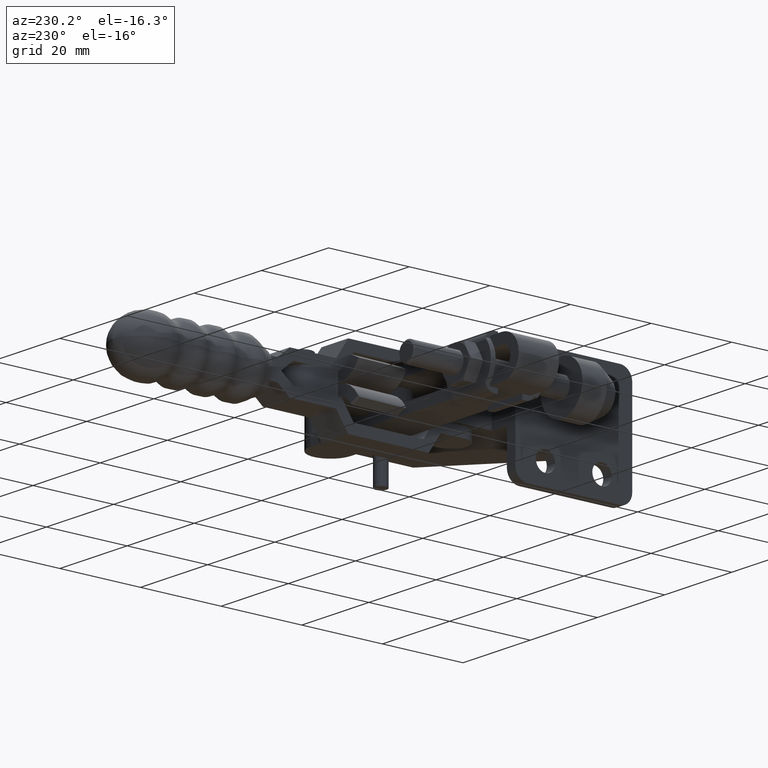
[diagram: clean part render]
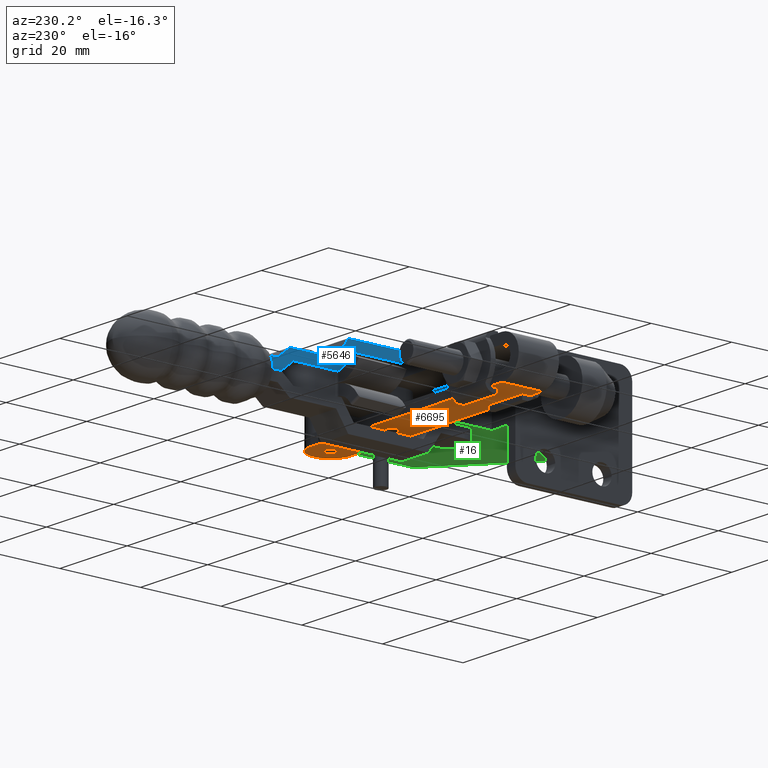
[diagram: same view with three faces highlighted in distinct colors, each labeled with its STEP entity id]
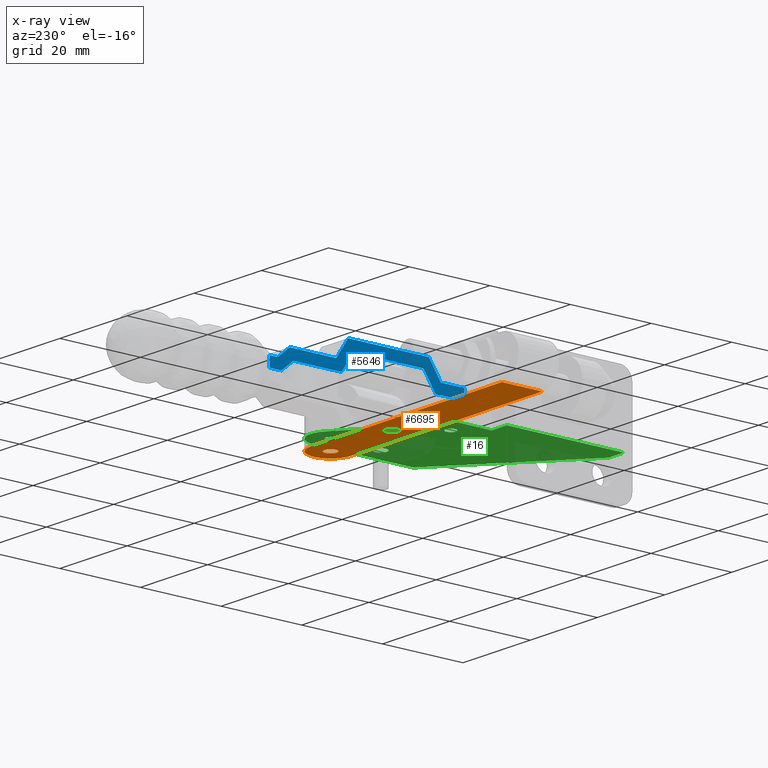
[diagram: x-ray of the same camera — body ghosted, the three highlighted faces saturated]
A machine part, auxiliary view with three faces highlighted in distinct colors.
The next image is the same camera in x-ray (body ghosted, the three faces saturated) — at least one of them is partly hidden behind the body in this view.
Their STEP definitions:

[orange] entity #6695 — the highlighted planar face has unit normal (-0, -0, 1).
#117 = ORIENTED_EDGE ( 'NONE', *, *, #7894, .T. ) ;
#579 = CARTESIAN_POINT ( 'NONE',  ( -4.999999999999765500, 27.00000000000003600, -4.999999999999991100 ) ) ;
#684 = AXIS2_PLACEMENT_3D ( 'NONE', #3376, #6653, #1699 ) ;
#1357 = DIRECTION ( 'NONE',  ( -1.000000000000000000, 0.0000000000000000000, -1.137523590804463300E-015 ) ) ;
#1418 = CIRCLE ( 'NONE', #6727, 4.999999999999997300 ) ;
#1476 = DIRECTION ( 'NONE',  ( 1.243495625872095400E-015, 9.951337725666447200E-016, -1.000000000000000000 ) ) ;
#1498 = FACE_OUTER_BOUND ( 'NONE', #2494, .T. ) ;
#1699 = DIRECTION ( 'NONE',  ( 1.000000000000000000, 0.0000000000000000000, 1.137523590804464700E-015 ) ) ;
#1741 = CARTESIAN_POINT ( 'NONE',  ( -4.999999999999986700, 26.99999999999999600, -4.999999999999923600 ) ) ;
#1756 = FACE_BOUND ( 'NONE', #2643, .T. ) ;
#1788 = VERTEX_POINT ( 'NONE', #6216 ) ;
#1830 = CARTESIAN_POINT ( 'NONE',  ( -62.00000000000000000, 21.99999999999999300, -4.999999999999999100 ) ) ;
#1834 = ORIENTED_EDGE ( 'NONE', *, *, #9188, .T. ) ;
#1890 = VECTOR ( 'NONE', #7376, 1000.000000000000000 ) ;
#1899 = VERTEX_POINT ( 'NONE', #7697 ) ;
#1908 = EDGE_CURVE ( 'NONE', #9593, #8525, #9566, .T. ) ;
#2168 = EDGE_CURVE ( 'NONE', #7654, #1788, #4200, .T. ) ;
#2418 = VECTOR ( 'NONE', #10162, 1000.000000000000000 ) ;
#2494 = EDGE_LOOP ( 'NONE', ( #7686, #7336, #9640, #1834 ) ) ;
#2546 = DIRECTION ( 'NONE',  ( 0.0000000000000000000, 1.000000000000000000, 1.040834085586084800E-015 ) ) ;
#2616 = VERTEX_POINT ( 'NONE', #9812 ) ;
#2643 = EDGE_LOOP ( 'NONE', ( #3778, #6854 ) ) ;
#2862 = DIRECTION ( 'NONE',  ( -1.318559502757754500E-015, -8.971511682777973100E-016, 1.000000000000000000 ) ) ;
#2883 = CIRCLE ( 'NONE', #7663, 1.524999999999998600 ) ;
#3376 = CARTESIAN_POINT ( 'NONE',  ( -23.25112744560024700, 27.00218945427035100, -4.999999999999946700 ) ) ;
#3436 = CARTESIAN_POINT ( 'NONE',  ( -62.00000000000000000, 21.99999999999999300, -4.999999999999999100 ) ) ;
#3549 = AXIS2_PLACEMENT_3D ( 'NONE', #7650, #2862, #8480 ) ;
#3778 = ORIENTED_EDGE ( 'NONE', *, *, #2168, .F. ) ;
#3805 = CARTESIAN_POINT ( 'NONE',  ( -4.999999999999986700, 31.99999999999999300, -4.999999999999918300 ) ) ;
#4200 = CIRCLE ( 'NONE', #684, 1.524999999999998600 ) ;
#4612 = AXIS2_PLACEMENT_3D ( 'NONE', #3436, #9825, #5043 ) ;
#4946 = CARTESIAN_POINT ( 'NONE',  ( -21.72612744560024800, 27.00218945427035100, -4.999999999999944900 ) ) ;
#4951 = ORIENTED_EDGE ( 'NONE', *, *, #7483, .T. ) ;
#5043 = DIRECTION ( 'NONE',  ( 0.0000000000000000000, -1.000000000000000000, -9.951337725666447200E-016 ) ) ;
#5067 = CIRCLE ( 'NONE', #6293, 1.525000000000000400 ) ;
#5326 = CARTESIAN_POINT ( 'NONE',  ( -62.00000000000000000, 31.99999999999999300, -4.999999999999989300 ) ) ;
#5467 = EDGE_CURVE ( 'NONE', #5854, #8525, #1418, .T. ) ;
#5643 = VERTEX_POINT ( 'NONE', #8333 ) ;
#5724 = FACE_BOUND ( 'NONE', #7446, .T. ) ;
#5854 = VERTEX_POINT ( 'NONE', #3805 ) ;
#6106 = DIRECTION ( 'NONE',  ( -1.318559502757754500E-015, -8.971511682777973100E-016, 1.000000000000000000 ) ) ;
#6216 = CARTESIAN_POINT ( 'NONE',  ( -24.77612744560024500, 27.00218945427035100, -4.999999999999948500 ) ) ;
#6239 = CARTESIAN_POINT ( 'NONE',  ( -23.25112744560024700, 27.00218945427035100, -4.999999999999946700 ) ) ;
#6293 = AXIS2_PLACEMENT_3D ( 'NONE', #579, #6106, #1357 ) ;
#6553 = CIRCLE ( 'NONE', #3549, 1.525000000000000400 ) ;
#6653 = DIRECTION ( 'NONE',  ( 1.243495625872095400E-015, 9.951337725666447200E-016, -1.000000000000000000 ) ) ;
#6695 = ADVANCED_FACE ( 'NONE', ( #5724, #1756, #1498 ), #8195, .F. ) ;
#6727 = AXIS2_PLACEMENT_3D ( 'NONE', #1741, #7287, #2546 ) ;
#6854 = ORIENTED_EDGE ( 'NONE', *, *, #9897, .F. ) ;
#6927 = CARTESIAN_POINT ( 'NONE',  ( -4.999999999999986700, 22.00000000000000700, -4.999999999999928100 ) ) ;
#7045 = DIRECTION ( 'NONE',  ( 1.000000000000000000, 0.0000000000000000000, 1.137523590804464700E-015 ) ) ;
#7287 = DIRECTION ( 'NONE',  ( 1.243495625872095400E-015, 9.951337725666447200E-016, -1.000000000000000000 ) ) ;
#7336 = ORIENTED_EDGE ( 'NONE', *, *, #1908, .F. ) ;
#7376 = DIRECTION ( 'NONE',  ( 0.0000000000000000000, 1.000000000000000000, 9.951337725666447200E-016 ) ) ;
#7440 = VECTOR ( 'NONE', #7992, 1000.000000000000000 ) ;
#7446 = EDGE_LOOP ( 'NONE', ( #117, #4951 ) ) ;
#7483 = EDGE_CURVE ( 'NONE', #2616, #5643, #5067, .T. ) ;
#7650 = CARTESIAN_POINT ( 'NONE',  ( -4.999999999999765500, 27.00000000000003600, -4.999999999999991100 ) ) ;
#7654 = VERTEX_POINT ( 'NONE', #4946 ) ;
#7663 = AXIS2_PLACEMENT_3D ( 'NONE', #6239, #1476, #7045 ) ;
#7686 = ORIENTED_EDGE ( 'NONE', *, *, #5467, .T. ) ;
#7697 = CARTESIAN_POINT ( 'NONE',  ( -62.00000000000000000, 31.99999999999999300, -4.999999999999989300 ) ) ;
#7730 = CARTESIAN_POINT ( 'NONE',  ( -62.00000000000000000, 21.99999999999999300, -4.999999999999999100 ) ) ;
#7894 = EDGE_CURVE ( 'NONE', #5643, #2616, #6553, .T. ) ;
#7992 = DIRECTION ( 'NONE',  ( 1.000000000000000000, 0.0000000000000000000, 1.243495625872095400E-015 ) ) ;
#8195 = PLANE ( 'NONE',  #4612 ) ;
#8252 = LINE ( 'NONE', #1830, #1890 ) ;
#8333 = CARTESIAN_POINT ( 'NONE',  ( -6.524999999999765900, 27.00000000000003600, -4.999999999999992900 ) ) ;
#8480 = DIRECTION ( 'NONE',  ( -1.000000000000000000, 0.0000000000000000000, -1.137523590804463300E-015 ) ) ;
#8525 = VERTEX_POINT ( 'NONE', #6927 ) ;
#8798 = LINE ( 'NONE', #5326, #2418 ) ;
#8996 = CARTESIAN_POINT ( 'NONE',  ( -62.00000000000000000, 21.99999999999999300, -4.999999999999999100 ) ) ;
#9188 = EDGE_CURVE ( 'NONE', #1899, #5854, #8798, .T. ) ;
#9566 = LINE ( 'NONE', #7730, #7440 ) ;
#9593 = VERTEX_POINT ( 'NONE', #8996 ) ;
#9640 = ORIENTED_EDGE ( 'NONE', *, *, #10109, .T. ) ;
#9812 = CARTESIAN_POINT ( 'NONE',  ( -3.474999999999765600, 27.00000000000003600, -4.999999999999989300 ) ) ;
#9825 = DIRECTION ( 'NONE',  ( -1.243495625872095400E-015, -9.951337725666447200E-016, 1.000000000000000000 ) ) ;
#9897 = EDGE_CURVE ( 'NONE', #1788, #7654, #2883, .T. ) ;
#10109 = EDGE_CURVE ( 'NONE', #9593, #1899, #8252, .T. ) ;
#10162 = DIRECTION ( 'NONE',  ( 1.000000000000000000, 0.0000000000000000000, 1.243495625872095400E-015 ) ) ;

[blue] entity #5646 — the highlighted planar face has unit normal (1, 0, 0).
#156 = ORIENTED_EDGE ( 'NONE', *, *, #4162, .F. ) ;
#197 = VECTOR ( 'NONE', #4480, 1000.000000000000000 ) ;
#369 = DIRECTION ( 'NONE',  ( 7.989152415359960500E-031, 1.000000000000000000, -2.383379207340311900E-015 ) ) ;
#409 = CARTESIAN_POINT ( 'NONE',  ( -27.99999999999994300, 34.12440246899903000, 23.47966460916793700 ) ) ;
#458 = CARTESIAN_POINT ( 'NONE',  ( -27.99999999999990100, 59.29999999999964900, 2.499999999999917400 ) ) ;
#565 = CARTESIAN_POINT ( 'NONE',  ( -27.99999999999992200, 21.79999999999994400, 9.499999999999976900 ) ) ;
#720 = VERTEX_POINT ( 'NONE', #1280 ) ;
#781 = EDGE_CURVE ( 'NONE', #4903, #5159, #3560, .T. ) ;
#811 = LINE ( 'NONE', #8936, #9037 ) ;
#885 = VECTOR ( 'NONE', #1307, 1000.000000000000100 ) ;
#1044 = EDGE_CURVE ( 'NONE', #5359, #10115, #1768, .T. ) ;
#1050 = DIRECTION ( 'NONE',  ( -1.026404106011485300E-015, -0.7682212795973634200, 0.6401843996644948100 ) ) ;
#1051 = LINE ( 'NONE', #4191, #7128 ) ;
#1079 = CARTESIAN_POINT ( 'NONE',  ( -27.99999999999995000, 61.29999999999968500, 23.47966460916790500 ) ) ;
#1118 = CARTESIAN_POINT ( 'NONE',  ( -27.99999999999991500, 56.29999999999974800, 4.999999999999926300 ) ) ;
#1119 = LINE ( 'NONE', #4621, #5317 ) ;
#1193 = DIRECTION ( 'NONE',  ( 6.139581518573648900E-031, 1.000000000000000000, -1.526760972485686100E-015 ) ) ;
#1221 = DIRECTION ( 'NONE',  ( 1.373142243848756200E-015, -0.5547001962252449100, -0.8320502943378331700 ) ) ;
#1269 = VERTEX_POINT ( 'NONE', #458 ) ;
#1280 = CARTESIAN_POINT ( 'NONE',  ( -27.99999999999990400, 13.00000000000002500, 4.999999999999988500 ) ) ;
#1307 = DIRECTION ( 'NONE',  ( 1.026404106011485700E-015, 0.7682212795973617500, -0.6401843996644966900 ) ) ;
#1441 = CARTESIAN_POINT ( 'NONE',  ( -27.99999999999989700, 23.13795939621993000, 6.999999999999960900 ) ) ;
#1553 = CARTESIAN_POINT ( 'NONE',  ( -27.99999999999991800, 44.79999999999989100, 4.999999999999940500 ) ) ;
#1599 = EDGE_CURVE ( 'NONE', #1611, #7728, #1119, .T. ) ;
#1611 = VERTEX_POINT ( 'NONE', #4656 ) ;
#1768 = LINE ( 'NONE', #8847, #9730 ) ;
#1921 = LINE ( 'NONE', #3214, #8015 ) ;
#2158 = LINE ( 'NONE', #2588, #4261 ) ;
#2272 = LINE ( 'NONE', #10077, #197 ) ;
#2588 = CARTESIAN_POINT ( 'NONE',  ( -27.99999999999991800, 8.999999999999827700, 4.999999999999994700 ) ) ;
#2610 = CARTESIAN_POINT ( 'NONE',  ( -27.99999999999989700, 23.13795939621993000, 6.999999999999960900 ) ) ;
#2654 = CARTESIAN_POINT ( 'NONE',  ( -27.99999999999991800, 61.29999999999967000, 2.499999999999916100 ) ) ;
#2734 = PLANE ( 'NONE',  #6531 ) ;
#3022 = EDGE_CURVE ( 'NONE', #10115, #4877, #4295, .T. ) ;
#3134 = FACE_OUTER_BOUND ( 'NONE', #10053, .T. ) ;
#3180 = ORIENTED_EDGE ( 'NONE', *, *, #3935, .F. ) ;
#3214 = CARTESIAN_POINT ( 'NONE',  ( -27.99999999999990800, 43.46204060377995400, 2.499999999999926700 ) ) ;
#3245 = DIRECTION ( 'NONE',  ( -6.139581518573649800E-031, -1.000000000000000000, 1.526760972485686300E-015 ) ) ;
#3322 = DIRECTION ( 'NONE',  ( -6.139581518573649800E-031, -1.000000000000000000, 1.526760972485686300E-015 ) ) ;
#3401 = VERTEX_POINT ( 'NONE', #4308 ) ;
#3410 = CARTESIAN_POINT ( 'NONE',  ( -27.99999999999990100, 52.38700974812658700, 4.999999991984329600E-005 ) ) ;
#3445 = EDGE_CURVE ( 'NONE', #7122, #4993, #7025, .T. ) ;
#3504 = ORIENTED_EDGE ( 'NONE', *, *, #1599, .F. ) ;
#3560 = LINE ( 'NONE', #3410, #4516 ) ;
#3811 = EDGE_CURVE ( 'NONE', #4444, #1269, #7012, .T. ) ;
#3821 = DIRECTION ( 'NONE',  ( 4.409949564320608300E-031, 1.000000000000000000, -7.256917762873761700E-016 ) ) ;
#3935 = EDGE_CURVE ( 'NONE', #4877, #6634, #1051, .T. ) ;
#4057 = CARTESIAN_POINT ( 'NONE',  ( -27.99999999999991100, 61.29999999999964200, 4.999999990623529200E-005 ) ) ;
#4145 = ORIENTED_EDGE ( 'NONE', *, *, #7771, .F. ) ;
#4162 = EDGE_CURVE ( 'NONE', #720, #6984, #2272, .T. ) ;
#4182 = DIRECTION ( 'NONE',  ( -6.139581518573649800E-031, -1.000000000000000000, 1.526760972485686300E-015 ) ) ;
#4191 = CARTESIAN_POINT ( 'NONE',  ( -27.99999999999991500, 40.46204060378005400, 6.999999999999950300 ) ) ;
#4261 = VECTOR ( 'NONE', #4182, 1000.000000000000000 ) ;
#4295 = LINE ( 'NONE', #1441, #10193 ) ;
#4308 = CARTESIAN_POINT ( 'NONE',  ( -27.99999999999990400, 55.39487516204651000, 2.499999999999921000 ) ) ;
#4393 = EDGE_CURVE ( 'NONE', #4993, #720, #2158, .T. ) ;
#4428 = EDGE_CURVE ( 'NONE', #4444, #4903, #7509, .T. ) ;
#4444 = VERTEX_POINT ( 'NONE', #2654 ) ;
#4454 = ORIENTED_EDGE ( 'NONE', *, *, #4428, .T. ) ;
#4480 = DIRECTION ( 'NONE',  ( 1.562756255276090500E-015, -8.328715820949640800E-016, -1.000000000000000000 ) ) ;
#4509 = DIRECTION ( 'NONE',  ( -6.139581518573649800E-031, -1.000000000000000000, 1.526760972485686300E-015 ) ) ;
#4516 = VECTOR ( 'NONE', #3322, 1000.000000000000000 ) ;
#4611 = ORIENTED_EDGE ( 'NONE', *, *, #4393, .F. ) ;
#4621 = CARTESIAN_POINT ( 'NONE',  ( -27.99999999999991100, 41.80000000000001100, 9.499999999999950300 ) ) ;
#4634 = DIRECTION ( 'NONE',  ( -1.345386668233131000E-015, -0.5547001962252141600, 0.8320502943378537100 ) ) ;
#4644 = VECTOR ( 'NONE', #3245, 1000.000000000000000 ) ;
#4656 = CARTESIAN_POINT ( 'NONE',  ( -27.99999999999991800, 44.79999999999989100, 4.999999999999940500 ) ) ;
#4658 = EDGE_CURVE ( 'NONE', #7728, #7122, #5242, .T. ) ;
#4693 = ORIENTED_EDGE ( 'NONE', *, *, #9955, .F. ) ;
#4758 = ORIENTED_EDGE ( 'NONE', *, *, #3811, .F. ) ;
#4819 = CARTESIAN_POINT ( 'NONE',  ( -27.99999999999991500, 40.46204060378005400, 6.999999999999950300 ) ) ;
#4877 = VERTEX_POINT ( 'NONE', #4819 ) ;
#4903 = VERTEX_POINT ( 'NONE', #4057 ) ;
#4984 = DIRECTION ( 'NONE',  ( 1.373142243848760100E-015, 0.5547001962252131600, -0.8320502943378543800 ) ) ;
#4993 = VERTEX_POINT ( 'NONE', #5777 ) ;
#5085 = LINE ( 'NONE', #8500, #885 ) ;
#5159 = VERTEX_POINT ( 'NONE', #7628 ) ;
#5161 = CARTESIAN_POINT ( 'NONE',  ( -27.99999999999990800, 18.79999999999985900, 4.999999999999984000 ) ) ;
#5242 = LINE ( 'NONE', #565, #7119 ) ;
#5317 = VECTOR ( 'NONE', #4634, 1000.000000000000200 ) ;
#5359 = VERTEX_POINT ( 'NONE', #8702 ) ;
#5394 = EDGE_CURVE ( 'NONE', #6634, #3401, #1921, .T. ) ;
#5418 = VECTOR ( 'NONE', #369, 1000.000000000000000 ) ;
#5543 = ORIENTED_EDGE ( 'NONE', *, *, #3445, .F. ) ;
#5595 = VERTEX_POINT ( 'NONE', #1118 ) ;
#5614 = ORIENTED_EDGE ( 'NONE', *, *, #1044, .F. ) ;
#5646 = ADVANCED_FACE ( 'NONE', ( #3134 ), #2734, .F. ) ;
#5703 = CARTESIAN_POINT ( 'NONE',  ( -27.99999999999990800, 43.46204060377995400, 2.499999999999926700 ) ) ;
#5777 = CARTESIAN_POINT ( 'NONE',  ( -27.99999999999990800, 18.79999999999985900, 4.999999999999984000 ) ) ;
#5816 = DIRECTION ( 'NONE',  ( 1.562756255276090500E-015, -1.526760972485687300E-015, -1.000000000000000000 ) ) ;
#5872 = LINE ( 'NONE', #1553, #9872 ) ;
#5933 = DIRECTION ( 'NONE',  ( 1.000000000000000000, 1.771997108206073800E-030, 1.562756255276107300E-015 ) ) ;
#6306 = DIRECTION ( 'NONE',  ( -6.139581518573649800E-031, -1.000000000000000000, 1.526760972485686300E-015 ) ) ;
#6531 = AXIS2_PLACEMENT_3D ( 'NONE', #409, #5933, #1193 ) ;
#6634 = VERTEX_POINT ( 'NONE', #5703 ) ;
#6870 = EDGE_CURVE ( 'NONE', #3401, #5159, #5085, .T. ) ;
#6984 = VERTEX_POINT ( 'NONE', #7030 ) ;
#6992 = ORIENTED_EDGE ( 'NONE', *, *, #6870, .F. ) ;
#7012 = LINE ( 'NONE', #7209, #4644 ) ;
#7025 = LINE ( 'NONE', #5161, #8930 ) ;
#7030 = CARTESIAN_POINT ( 'NONE',  ( -27.99999999999990400, 12.99999999999995600, 2.499999999999993800 ) ) ;
#7119 = VECTOR ( 'NONE', #4509, 1000.000000000000000 ) ;
#7122 = VERTEX_POINT ( 'NONE', #7219 ) ;
#7128 = VECTOR ( 'NONE', #4984, 1000.000000000000100 ) ;
#7209 = CARTESIAN_POINT ( 'NONE',  ( -27.99999999999990100, 59.29999999999964900, 2.499999999999917400 ) ) ;
#7219 = CARTESIAN_POINT ( 'NONE',  ( -27.99999999999992200, 21.79999999999994400, 9.499999999999976900 ) ) ;
#7230 = ORIENTED_EDGE ( 'NONE', *, *, #4658, .F. ) ;
#7509 = LINE ( 'NONE', #1079, #9626 ) ;
#7628 = CARTESIAN_POINT ( 'NONE',  ( -27.99999999999990400, 58.39481516204637800, 4.999999991002028900E-005 ) ) ;
#7728 = VERTEX_POINT ( 'NONE', #9069 ) ;
#7771 = EDGE_CURVE ( 'NONE', #6984, #5359, #9681, .T. ) ;
#8009 = DIRECTION ( 'NONE',  ( 3.628503007566163600E-031, 1.000000000000000000, -3.637692507743922400E-016 ) ) ;
#8015 = VECTOR ( 'NONE', #8009, 1000.000000000000000 ) ;
#8049 = DIRECTION ( 'NONE',  ( -1.345386668233126500E-015, 0.5547001962252462400, 0.8320502943378322900 ) ) ;
#8455 = ORIENTED_EDGE ( 'NONE', *, *, #781, .T. ) ;
#8500 = CARTESIAN_POINT ( 'NONE',  ( -27.99999999999990400, 55.39487516204651000, 2.499999999999921000 ) ) ;
#8702 = CARTESIAN_POINT ( 'NONE',  ( -27.99999999999990800, 20.13795939621979200, 2.499999999999976900 ) ) ;
#8847 = CARTESIAN_POINT ( 'NONE',  ( -27.99999999999990800, 20.13795939621979200, 2.499999999999976900 ) ) ;
#8930 = VECTOR ( 'NONE', #1221, 1000.000000000000000 ) ;
#8936 = CARTESIAN_POINT ( 'NONE',  ( -27.99999999999991500, 56.29999999999974800, 4.999999999999926300 ) ) ;
#9037 = VECTOR ( 'NONE', #1050, 1000.000000000000000 ) ;
#9069 = CARTESIAN_POINT ( 'NONE',  ( -27.99999999999991100, 41.80000000000001100, 9.499999999999950300 ) ) ;
#9075 = ORIENTED_EDGE ( 'NONE', *, *, #5394, .F. ) ;
#9093 = CARTESIAN_POINT ( 'NONE',  ( -27.99999999999989700, 8.999999999999813500, 2.500000000000004900 ) ) ;
#9548 = EDGE_CURVE ( 'NONE', #1269, #5595, #811, .T. ) ;
#9626 = VECTOR ( 'NONE', #5816, 1000.000000000000000 ) ;
#9633 = ORIENTED_EDGE ( 'NONE', *, *, #3022, .F. ) ;
#9681 = LINE ( 'NONE', #9093, #5418 ) ;
#9730 = VECTOR ( 'NONE', #8049, 1000.000000000000100 ) ;
#9872 = VECTOR ( 'NONE', #6306, 1000.000000000000000 ) ;
#9955 = EDGE_CURVE ( 'NONE', #5595, #1611, #5872, .T. ) ;
#10053 = EDGE_LOOP ( 'NONE', ( #4758, #4454, #8455, #6992, #9075, #3180, #9633, #5614, #4145, #156, #4611, #5543, #7230, #3504, #4693, #10134 ) ) ;
#10077 = CARTESIAN_POINT ( 'NONE',  ( -27.99999999999992500, 12.99999999999995600, 9.499999999999992900 ) ) ;
#10115 = VERTEX_POINT ( 'NONE', #2610 ) ;
#10134 = ORIENTED_EDGE ( 'NONE', *, *, #9548, .F. ) ;
#10193 = VECTOR ( 'NONE', #3821, 1000.000000000000000 ) ;

[green] entity #16 — the highlighted planar face has unit normal (0, 0, -1).
#16 = ADVANCED_FACE ( 'NONE', ( #1135, #5496, #5628, #7239 ), #2828, .T. ) ;
#253 = LINE ( 'NONE', #9290, #4189 ) ;
#311 = EDGE_CURVE ( 'NONE', #734, #10183, #3847, .T. ) ;
#449 = CARTESIAN_POINT ( 'NONE',  ( -22.74999999999989700, 13.00000000000001800, -2.499999999999958300 ) ) ;
#495 = EDGE_CURVE ( 'NONE', #10147, #3443, #6086, .T. ) ;
#497 = CARTESIAN_POINT ( 'NONE',  ( -7.965995190249059600, 31.02527918676689500, -2.499999999999958300 ) ) ;
#505 = DIRECTION ( 'NONE',  ( 1.000000000000000000, 0.0000000000000000000, 0.0000000000000000000 ) ) ;
#557 = CARTESIAN_POINT ( 'NONE',  ( -3.499999999999769500, 14.56000000000002400, -2.499999999999958700 ) ) ;
#580 = EDGE_CURVE ( 'NONE', #4219, #9850, #9594, .T. ) ;
#587 = CARTESIAN_POINT ( 'NONE',  ( -35.99999999999957400, -21.97999999999998600, -2.499999999999958300 ) ) ;
#597 = DIRECTION ( 'NONE',  ( -0.0000000000000000000, -0.0000000000000000000, 1.000000000000000000 ) ) ;
#611 = CARTESIAN_POINT ( 'NONE',  ( -4.999999999999769100, 14.56000000000002400, -2.499999999999958700 ) ) ;
#616 = EDGE_CURVE ( 'NONE', #5660, #8763, #9721, .T. ) ;
#734 = VERTEX_POINT ( 'NONE', #2483 ) ;
#750 = EDGE_CURVE ( 'NONE', #2204, #5660, #8373, .T. ) ;
#773 = VERTEX_POINT ( 'NONE', #2412 ) ;
#861 = CARTESIAN_POINT ( 'NONE',  ( -33.49999999999958100, 7.020000000000015600, -2.499999999999958300 ) ) ;
#889 = DIRECTION ( 'NONE',  ( -0.0000000000000000000, -0.0000000000000000000, 1.000000000000000000 ) ) ;
#1090 = DIRECTION ( 'NONE',  ( 1.196361017915039200E-016, -1.000000000000000000, 0.0000000000000000000 ) ) ;
#1135 = FACE_BOUND ( 'NONE', #5930, .T. ) ;
#1251 = ORIENTED_EDGE ( 'NONE', *, *, #5445, .F. ) ;
#1293 = VECTOR ( 'NONE', #1924, 1000.000000000000000 ) ;
#1318 = VERTEX_POINT ( 'NONE', #557 ) ;
#1393 = DIRECTION ( 'NONE',  ( -1.000000000000000000, 0.0000000000000000000, 0.0000000000000000000 ) ) ;
#1653 = ORIENTED_EDGE ( 'NONE', *, *, #5594, .F. ) ;
#1898 = CARTESIAN_POINT ( 'NONE',  ( -25.24999999999989700, 13.00000000000001800, -2.499999999999958300 ) ) ;
#1912 = VERTEX_POINT ( 'NONE', #7843 ) ;
#1924 = DIRECTION ( 'NONE',  ( -3.202530376129759600E-015, 1.000000000000000000, 0.0000000000000000000 ) ) ;
#1944 = DIRECTION ( 'NONE',  ( -0.0000000000000000000, -1.000000000000000000, 0.0000000000000000000 ) ) ;
#2011 = ORIENTED_EDGE ( 'NONE', *, *, #750, .F. ) ;
#2121 = CARTESIAN_POINT ( 'NONE',  ( -28.99999999999979000, 15.52653880063466700, -2.499999999999958700 ) ) ;
#2204 = VERTEX_POINT ( 'NONE', #2121 ) ;
#2412 = CARTESIAN_POINT ( 'NONE',  ( 2.350550309948573600E-013, 27.00000000000003200, -2.499999999999958300 ) ) ;
#2432 = EDGE_CURVE ( 'NONE', #3443, #10147, #3310, .T. ) ;
#2460 = AXIS2_PLACEMENT_3D ( 'NONE', #3330, #8958, #4144 ) ;
#2461 = DIRECTION ( 'NONE',  ( 1.000000000000000000, 0.0000000000000000000, 0.0000000000000000000 ) ) ;
#2483 = CARTESIAN_POINT ( 'NONE',  ( -3.749999999999767300, 27.00000000000003200, -2.499999999999958300 ) ) ;
#2507 = AXIS2_PLACEMENT_3D ( 'NONE', #5638, #889, #6433 ) ;
#2508 = CARTESIAN_POINT ( 'NONE',  ( -4.999999999999767300, 27.00000000000003200, -2.499999999999958300 ) ) ;
#2552 = EDGE_CURVE ( 'NONE', #9850, #7727, #253, .T. ) ;
#2617 = EDGE_LOOP ( 'NONE', ( #6132, #7656 ) ) ;
#2828 = PLANE ( 'NONE',  #7708 ) ;
#2915 = VERTEX_POINT ( 'NONE', #497 ) ;
#3250 = ORIENTED_EDGE ( 'NONE', *, *, #8005, .F. ) ;
#3284 = EDGE_CURVE ( 'NONE', #10183, #734, #5031, .T. ) ;
#3290 = DIRECTION ( 'NONE',  ( 1.000000000000000000, 0.0000000000000000000, 0.0000000000000000000 ) ) ;
#3310 = CIRCLE ( 'NONE', #10203, 1.250000000000001100 ) ;
#3330 = CARTESIAN_POINT ( 'NONE',  ( -4.999999999999769100, 14.56000000000002400, -2.499999999999958700 ) ) ;
#3378 = LINE ( 'NONE', #6666, #1293 ) ;
#3443 = VERTEX_POINT ( 'NONE', #449 ) ;
#3847 = CIRCLE ( 'NONE', #2507, 1.250000000000000200 ) ;
#3864 = ORIENTED_EDGE ( 'NONE', *, *, #3284, .T. ) ;
#3885 = ORIENTED_EDGE ( 'NONE', *, *, #580, .F. ) ;
#4081 = LINE ( 'NONE', #5828, #8082 ) ;
#4144 = DIRECTION ( 'NONE',  ( -1.000000000000000000, 0.0000000000000000000, 0.0000000000000000000 ) ) ;
#4148 = CIRCLE ( 'NONE', #8581, 1.500000000000000400 ) ;
#4167 = DIRECTION ( 'NONE',  ( -0.0000000000000000000, -0.0000000000000000000, 1.000000000000000000 ) ) ;
#4189 = VECTOR ( 'NONE', #7497, 1000.000000000000000 ) ;
#4219 = VERTEX_POINT ( 'NONE', #7927 ) ;
#4263 = EDGE_LOOP ( 'NONE', ( #4553, #6312 ) ) ;
#4389 = DIRECTION ( 'NONE',  ( -0.0000000000000000000, -0.0000000000000000000, 1.000000000000000000 ) ) ;
#4553 = ORIENTED_EDGE ( 'NONE', *, *, #495, .T. ) ;
#4605 = DIRECTION ( 'NONE',  ( -0.8050558373533658300, -0.5931990380498528600, -0.0000000000000000000 ) ) ;
#4729 = ORIENTED_EDGE ( 'NONE', *, *, #616, .F. ) ;
#4985 = CIRCLE ( 'NONE', #2460, 1.500000000000000400 ) ;
#5031 = CIRCLE ( 'NONE', #5356, 1.250000000000000200 ) ;
#5054 = LINE ( 'NONE', #6174, #6931 ) ;
#5212 = EDGE_CURVE ( 'NONE', #1912, #1318, #4148, .T. ) ;
#5215 = DIRECTION ( 'NONE',  ( 0.0000000000000000000, 0.0000000000000000000, -1.000000000000000000 ) ) ;
#5356 = AXIS2_PLACEMENT_3D ( 'NONE', #8978, #4167, #9750 ) ;
#5445 = EDGE_CURVE ( 'NONE', #773, #2915, #5635, .T. ) ;
#5496 = FACE_BOUND ( 'NONE', #2617, .T. ) ;
#5594 = EDGE_CURVE ( 'NONE', #7727, #773, #3378, .T. ) ;
#5628 = FACE_BOUND ( 'NONE', #4263, .T. ) ;
#5635 = CIRCLE ( 'NONE', #5662, 5.000000000000002700 ) ;
#5638 = CARTESIAN_POINT ( 'NONE',  ( -4.999999999999767300, 27.00000000000003200, -2.499999999999958300 ) ) ;
#5660 = VERTEX_POINT ( 'NONE', #8369 ) ;
#5662 = AXIS2_PLACEMENT_3D ( 'NONE', #2508, #8069, #3290 ) ;
#5828 = CARTESIAN_POINT ( 'NONE',  ( -33.49999999999958100, 13.00000000000001600, -2.499999999999958300 ) ) ;
#5930 = EDGE_LOOP ( 'NONE', ( #3864, #8464 ) ) ;
#6086 = CIRCLE ( 'NONE', #9262, 1.250000000000001100 ) ;
#6117 = DIRECTION ( 'NONE',  ( 1.000000000000000000, 0.0000000000000000000, 0.0000000000000000000 ) ) ;
#6128 = CARTESIAN_POINT ( 'NONE',  ( -23.99999999999989700, 13.00000000000001800, -2.499999999999958300 ) ) ;
#6132 = ORIENTED_EDGE ( 'NONE', *, *, #10074, .F. ) ;
#6152 = DIRECTION ( 'NONE',  ( 0.0000000000000000000, 0.0000000000000000000, -1.000000000000000000 ) ) ;
#6174 = CARTESIAN_POINT ( 'NONE',  ( -7.965995190249059600, 31.02527918676689500, -2.499999999999958300 ) ) ;
#6312 = ORIENTED_EDGE ( 'NONE', *, *, #2432, .T. ) ;
#6433 = DIRECTION ( 'NONE',  ( 1.000000000000000000, 0.0000000000000000000, 0.0000000000000000000 ) ) ;
#6624 = CARTESIAN_POINT ( 'NONE',  ( 2.714842239903703100E-013, 2.353889304141120000, -2.499999999999958300 ) ) ;
#6645 = CARTESIAN_POINT ( 'NONE',  ( -6.249999999999768200, 27.00000000000003200, -2.499999999999958300 ) ) ;
#6666 = CARTESIAN_POINT ( 'NONE',  ( 2.714842239903703100E-013, 2.353889304141120000, -2.499999999999958300 ) ) ;
#6924 = DIRECTION ( 'NONE',  ( -1.000000000000000000, -0.0000000000000000000, 0.0000000000000000000 ) ) ;
#6931 = VECTOR ( 'NONE', #4605, 1000.000000000000100 ) ;
#7239 = FACE_OUTER_BOUND ( 'NONE', #8332, .T. ) ;
#7271 = EDGE_CURVE ( 'NONE', #8763, #4219, #4081, .T. ) ;
#7319 = CARTESIAN_POINT ( 'NONE',  ( -28.99999999999979000, 7.020000000000015600, -2.499999999999958300 ) ) ;
#7497 = DIRECTION ( 'NONE',  ( 0.7660444431189765700, 0.6427876096865410300, 0.0000000000000000000 ) ) ;
#7656 = ORIENTED_EDGE ( 'NONE', *, *, #5212, .F. ) ;
#7708 = AXIS2_PLACEMENT_3D ( 'NONE', #10034, #5215, #505 ) ;
#7727 = VERTEX_POINT ( 'NONE', #6624 ) ;
#7729 = CARTESIAN_POINT ( 'NONE',  ( -35.99999999999958100, 7.020000000000015600, -2.499999999999958300 ) ) ;
#7782 = CARTESIAN_POINT ( 'NONE',  ( -28.99999999999957700, -21.97999999999998600, -2.499999999999958300 ) ) ;
#7843 = CARTESIAN_POINT ( 'NONE',  ( -6.499999999999770000, 14.56000000000002400, -2.499999999999958700 ) ) ;
#7927 = CARTESIAN_POINT ( 'NONE',  ( -33.49999999999958100, -21.97999999999998600, -2.499999999999958300 ) ) ;
#8005 = EDGE_CURVE ( 'NONE', #2915, #2204, #5054, .T. ) ;
#8069 = DIRECTION ( 'NONE',  ( -0.0000000000000000000, -0.0000000000000000000, 1.000000000000000000 ) ) ;
#8082 = VECTOR ( 'NONE', #1090, 1000.000000000000000 ) ;
#8243 = VECTOR ( 'NONE', #1944, 1000.000000000000000 ) ;
#8298 = ORIENTED_EDGE ( 'NONE', *, *, #2552, .F. ) ;
#8332 = EDGE_LOOP ( 'NONE', ( #4729, #2011, #3250, #1251, #1653, #8298, #3885, #9733 ) ) ;
#8369 = CARTESIAN_POINT ( 'NONE',  ( -28.99999999999979000, 7.020000000000015600, -2.499999999999958300 ) ) ;
#8373 = LINE ( 'NONE', #7319, #8243 ) ;
#8464 = ORIENTED_EDGE ( 'NONE', *, *, #311, .T. ) ;
#8581 = AXIS2_PLACEMENT_3D ( 'NONE', #611, #6152, #1393 ) ;
#8763 = VERTEX_POINT ( 'NONE', #861 ) ;
#8958 = DIRECTION ( 'NONE',  ( 0.0000000000000000000, 0.0000000000000000000, -1.000000000000000000 ) ) ;
#8978 = CARTESIAN_POINT ( 'NONE',  ( -4.999999999999767300, 27.00000000000003200, -2.499999999999958300 ) ) ;
#9177 = CARTESIAN_POINT ( 'NONE',  ( -23.99999999999989700, 13.00000000000001800, -2.499999999999958300 ) ) ;
#9246 = VECTOR ( 'NONE', #6117, 1000.000000000000000 ) ;
#9262 = AXIS2_PLACEMENT_3D ( 'NONE', #9177, #4389, #9971 ) ;
#9290 = CARTESIAN_POINT ( 'NONE',  ( -28.99999999999957700, -21.97999999999998600, -2.499999999999958300 ) ) ;
#9594 = LINE ( 'NONE', #587, #9246 ) ;
#9721 = LINE ( 'NONE', #7729, #10149 ) ;
#9733 = ORIENTED_EDGE ( 'NONE', *, *, #7271, .F. ) ;
#9750 = DIRECTION ( 'NONE',  ( 1.000000000000000000, 0.0000000000000000000, 0.0000000000000000000 ) ) ;
#9850 = VERTEX_POINT ( 'NONE', #7782 ) ;
#9971 = DIRECTION ( 'NONE',  ( 1.000000000000000000, 0.0000000000000000000, 0.0000000000000000000 ) ) ;
#10034 = CARTESIAN_POINT ( 'NONE',  ( -23.99999999999989700, 13.00000000000001800, -2.499999999999958300 ) ) ;
#10074 = EDGE_CURVE ( 'NONE', #1318, #1912, #4985, .T. ) ;
#10147 = VERTEX_POINT ( 'NONE', #1898 ) ;
#10149 = VECTOR ( 'NONE', #6924, 1000.000000000000000 ) ;
#10183 = VERTEX_POINT ( 'NONE', #6645 ) ;
#10203 = AXIS2_PLACEMENT_3D ( 'NONE', #6128, #597, #2461 ) ;